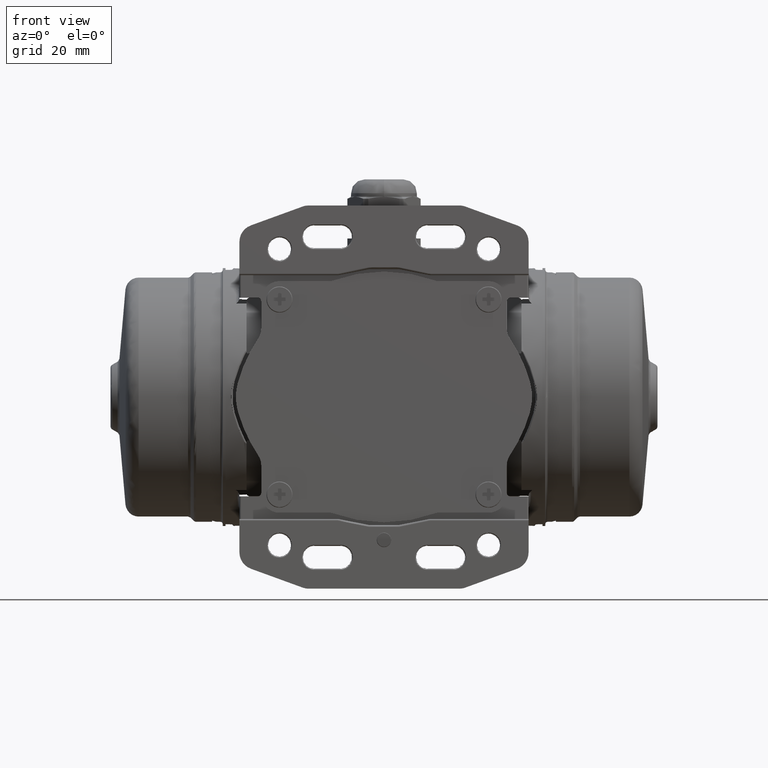
[diagram: clean part render]
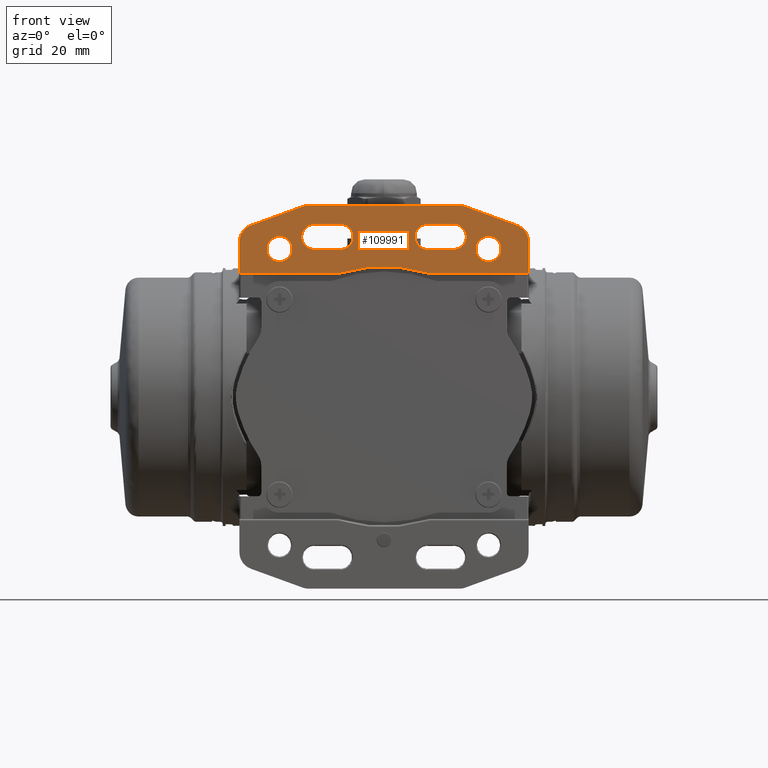
[diagram: same view with one face highlighted and labeled with its STEP entity id]
A machine part, front view. The second image highlights one B-rep face of the part: STEP entity #109991.
In plain terms, the highlighted planar face has unit normal (0, -1, 0).
Its self-contained STEP definition (entity closure, byte-faithful):
#297 = EDGE_CURVE ( 'NONE', #55110, #70408, #113274, .T. ) ;
#878 = CARTESIAN_POINT ( 'NONE',  ( 38.21509267599999800, -37.66390943500000100, 49.27899812649999200 ) ) ;
#1250 = CARTESIAN_POINT ( 'NONE',  ( -10.66903452149520400, -37.66390943500001500, 49.16739805635741300 ) ) ;
#2124 = CARTESIAN_POINT ( 'NONE',  ( 38.21509267599999800, -37.66390943500000100, 49.27899812649999200 ) ) ;
#2129 = CARTESIAN_POINT ( 'NONE',  ( 20.00499194400000400, -37.66390943500000100, 42.36961378750000100 ) ) ;
#2472 = CARTESIAN_POINT ( 'NONE',  ( -19.99500881599999900, -37.66390943500000100, 49.62440055399999700 ) ) ;
#2487 = EDGE_LOOP ( 'NONE', ( #68592, #55454 ) ) ;
#3033 = EDGE_CURVE ( 'NONE', #53085, #65955, #93179, .T. ) ;
#3132 = CARTESIAN_POINT ( 'NONE',  ( -12.49500888100000000, -37.66390943500000100, 42.36961378750000100 ) ) ;
#3255 = CARTESIAN_POINT ( 'NONE',  ( 28.17959993322146100, -37.66390943500000800, 45.66701133343615700 ) ) ;
#3675 = CARTESIAN_POINT ( 'NONE',  ( 12.94906644883843300, -37.66390943500000100, 35.54073647308492700 ) ) ;
#3696 = CARTESIAN_POINT ( 'NONE',  ( -21.16223463396239500, -37.66390943500000800, 49.43336491638876900 ) ) ;
#3715 = DIRECTION ( 'NONE',  ( -1.000000000000000000, 0.0000000000000000000, 0.0000000000000000000 ) ) ;
#3727 = AXIS2_PLACEMENT_3D ( 'NONE', #30834, #20711, #10973 ) ;
#4080 = CARTESIAN_POINT ( 'NONE',  ( -28.82555824584435600, -37.66390943500000800, 45.93879273496325800 ) ) ;
#4119 = ORIENTED_EDGE ( 'NONE', *, *, #106514, .T. ) ;
#4357 = CARTESIAN_POINT ( 'NONE',  ( -31.16452788811918500, -37.66390943500002200, 45.93891684577992900 ) ) ;
#4507 = CARTESIAN_POINT ( 'NONE',  ( 29.53327907921559300, -37.66390943500000100, 38.89302231472944300 ) ) ;
#4509 = CARTESIAN_POINT ( 'NONE',  ( -28.16948014631128000, -37.66390943500000100, 45.66725955507350700 ) ) ;
#4941 = CARTESIAN_POINT ( 'NONE',  ( 30.00499196800000200, -37.66390943500000100, 38.86961379700000000 ) ) ;
#4942 = CARTESIAN_POINT ( 'NONE',  ( -29.75738648917614200, -37.66390943500000100, 38.86975915783967400 ) ) ;
#5647 = CARTESIAN_POINT ( 'NONE',  ( -30.93559105734169600, -37.66390943500000100, 46.00806478752919300 ) ) ;
#5653 = EDGE_LOOP ( 'NONE', ( #10273, #22137, #92181, #42663 ) ) ;
#5804 = CARTESIAN_POINT ( 'NONE',  ( -26.46246716605304500, -37.66390943500000100, 43.44788244463978800 ) ) ;
#5965 = CARTESIAN_POINT ( 'NONE',  ( -38.20510871799999100, -37.66390943500000100, 49.27899843850000400 ) ) ;
#6656 = EDGE_CURVE ( 'NONE', #8417, #91784, #48770, .T. ) ;
#7002 = EDGE_CURVE ( 'NONE', #104261, #92576, #78993, .T. ) ;
#7479 = LINE ( 'NONE', #47944, #58949 ) ;
#7599 = EDGE_LOOP ( 'NONE', ( #121241, #39575 ) ) ;
#7945 = CARTESIAN_POINT ( 'NONE',  ( 8.972413567715573600, -37.66390943500001500, 45.04608161272594200 ) ) ;
#8020 = ORIENTED_EDGE ( 'NONE', *, *, #79632, .T. ) ;
#8417 = VERTEX_POINT ( 'NONE', #29245 ) ;
#8793 = CARTESIAN_POINT ( 'NONE',  ( 11.56427656430618400, -37.66390943499999400, 42.48606483729136600 ) ) ;
#8809 = VECTOR ( 'NONE', #23854, 1000.000000000000000 ) ;
#8924 = CARTESIAN_POINT ( 'NONE',  ( -8.962430242373402600, -37.66390943500000100, 46.94793182286797900 ) ) ;
#8954 = CARTESIAN_POINT ( 'NONE',  ( 22.23524289306879700, -37.66390943499999400, 43.09694228691027000 ) ) ;
#8967 = CARTESIAN_POINT ( 'NONE',  ( 40.89283835894723000, -37.66390943500000800, 47.03117776473828800 ) ) ;
#9111 = CARTESIAN_POINT ( 'NONE',  ( -5.422662462454646000, -37.66390943500000100, 37.12556823153927600 ) ) ;
#9241 = CARTESIAN_POINT ( 'NONE',  ( -22.22523906045226000, -37.66390943500000800, 43.09731047666839700 ) ) ;
#9277 = B_SPLINE_CURVE_WITH_KNOTS ( 'NONE', 3,
 ( #4941, #81909, #4507, #14309, #61604, #23995, #101394, #22733, #24407, #101807, #72620, #23572, #14732, #42565, #100115, #109484, #3255, #71770, #91250, #33291, #119200, #70936 ),
 .UNSPECIFIED., .F., .F.,
 ( 4, 2, 2, 2, 2, 2, 2, 2, 2, 2, 4 ),
 ( 0.0000000000000000000, 0.06249999999999957000, 0.1249999999999991400, 0.2499999999999991100, 0.3749999999999990600, 0.4999999999999990000, 0.6249999999999990000, 0.7499999999999990000, 0.8749999999999991100, 0.9374999999999995600, 1.000000000000000000 ),
 .UNSPECIFIED. ) ;
#9830 = B_SPLINE_CURVE_WITH_KNOTS ( 'NONE', 3,
 ( #67029, #30228, #105977, #9111, #18850, #86496, #10357, #28563, #115704, #57733, #99555, #51336, #59805, #22175, #11214 ),
 .UNSPECIFIED., .F., .F.,
 ( 4, 2, 1, 2, 2, 2, 2, 4 ),
 ( 0.0000000000000000000, 0.2500000000000000600, 0.3750000000000001100, 0.4375000000000001100, 0.5000000000000001100, 0.7500000000000000000, 0.8750000000000001100, 1.000000000000000000 ),
 .UNSPECIFIED. ) ;
#9907 = DIRECTION ( 'NONE',  ( 1.000000000000000000, 0.0000000000000000000, 0.0000000000000000000 ) ) ;
#10164 = CARTESIAN_POINT ( 'NONE',  ( -11.32778306969761300, -37.66390943500000100, 42.56064943204224700 ) ) ;
#10273 = ORIENTED_EDGE ( 'NONE', *, *, #122832, .T. ) ;
#10358 = EDGE_CURVE ( 'NONE', #91784, #97165, #65801, .T. ) ;
#10357 = CARTESIAN_POINT ( 'NONE',  ( -1.084772924272817500, -37.66390943499999400, 37.43088607178437100 ) ) ;
#10426 = CARTESIAN_POINT ( 'NONE',  ( -39.12323121436453700, -37.66390943499999400, 48.84170561261923600 ) ) ;
#10973 = DIRECTION ( 'NONE',  ( 0.0000000000000000000, 0.0000000000000000000, -1.000000000000000000 ) ) ;
#11162 = FACE_BOUND ( 'NONE', #2487, .T. ) ;
#11214 = CARTESIAN_POINT ( 'NONE',  ( 12.87961865100000100, -37.66390943500000100, 35.55970877649999600 ) ) ;
#11696 = CARTESIAN_POINT ( 'NONE',  ( -38.44507488771312600, -37.66390943500000800, 49.19159845311683900 ) ) ;
#11783 = EDGE_CURVE ( 'NONE', #70408, #55110, #9277, .T. ) ;
#13131 = B_SPLINE_CURVE_WITH_KNOTS ( 'NONE', 3,
 ( #96896, #76191, #18687, #37690, #38941, #48676, #116390, #58410, #87591, #29653, #39352, #107068, #66865, #115121, #124876, #8954, #76607, #86344, #68956, #59647, #69796, #22031, #68539, #2129 ),
 .UNSPECIFIED., .F., .F.,
 ( 4, 2, 2, 2, 2, 2, 2, 2, 2, 2, 2, 4 ),
 ( 0.0000000000000000000, 0.06250000000000001400, 0.1250000000000000300, 0.2500000000000001700, 0.3750000000000003300, 0.5000000000000004400, 0.6250000000000005600, 0.7500000000000007800, 0.8750000000000008900, 0.9062500000000006700, 0.9375000000000004400, 1.000000000000000000 ),
 .UNSPECIFIED. ) ;
#13720 = CARTESIAN_POINT ( 'NONE',  ( -33.16497548267813800, -37.66390943500000100, 40.67166246588582400 ) ) ;
#13907 = CARTESIAN_POINT ( 'NONE',  ( -21.61337394099999900, -37.66390943500000100, 54.99700717000000300 ) ) ;
#14205 = FACE_OUTER_BOUND ( 'NONE', #83527, .T. ) ;
#14309 = CARTESIAN_POINT ( 'NONE',  ( 29.06429236278441400, -37.66390943500000800, 38.98606185327057700 ) ) ;
#14310 = CARTESIAN_POINT ( 'NONE',  ( -27.09523352585263800, -37.66390943500000800, 44.72733662319007700 ) ) ;
#14353 = CARTESIAN_POINT ( 'NONE',  ( 0.004991978999994980300, -37.66390943500000100, 42.36961378750000100 ) ) ;
#14575 = CARTESIAN_POINT ( 'NONE',  ( -32.22536558909431600, -37.66390943500001500, 45.39676191118680000 ) ) ;
#14732 = CARTESIAN_POINT ( 'NONE',  ( 26.47271842590399200, -37.66390943500000100, 43.44779389354080500 ) ) ;
#14754 = VERTEX_POINT ( 'NONE', #98822 ) ;
#14870 = DIRECTION ( 'NONE',  ( 1.000000000000000000, 0.0000000000000000000, 0.0000000000000000000 ) ) ;
#15152 = CARTESIAN_POINT ( 'NONE',  ( -29.75708292075070100, -37.66390943500000800, 46.12425571278064500 ) ) ;
#15404 = CARTESIAN_POINT ( 'NONE',  ( -33.62253092124316800, -37.66390943500001500, 42.97035569407866300 ) ) ;
#15549 = VECTOR ( 'NONE', #14870, 1000.000000000000000 ) ;
#15553 = CARTESIAN_POINT ( 'NONE',  ( -28.82778369000342500, -37.66390943500000800, 39.06064927799644700 ) ) ;
#16083 = CARTESIAN_POINT ( 'NONE',  ( 22.20770442749372700, -37.66390943500000100, 54.99687958765607500 ) ) ;
#17276 = CARTESIAN_POINT ( 'NONE',  ( 12.03329431933645900, -37.66390943500000100, 42.39301937288167500 ) ) ;
#17284 = ORIENTED_EDGE ( 'NONE', *, *, #30783, .T. ) ;
#17341 = B_SPLINE_CURVE_WITH_KNOTS ( 'NONE', 3,
 ( #86220, #87468, #29537, #115002, #95502, #56596, #9241, #47283, #57014, #66741, #28279, #100571, #51526, #100996, #21965, #70556, #48984, #80704, #3696, #61633, #41767, #119226, #42595, #2472 ),
 .UNSPECIFIED., .F., .F.,
 ( 4, 2, 2, 2, 2, 2, 2, 2, 2, 2, 2, 4 ),
 ( 0.0000000000000000000, 0.06249999999999991700, 0.1249999999999998300, 0.2499999999999996700, 0.3749999999999995000, 0.4999999999999993300, 0.6249999999999991100, 0.7499999999999990000, 0.8749999999999988900, 0.9062499999999991100, 0.9374999999999994400, 1.000000000000000000 ),
 .UNSPECIFIED. ) ;
#18687 = CARTESIAN_POINT ( 'NONE',  ( 20.47668947289366400, -37.66390943500000100, 49.60099499015538500 ) ) ;
#18703 = CARTESIAN_POINT ( 'NONE',  ( 41.35012733919911900, -37.66390943500000800, 45.84118389055213800 ) ) ;
#18850 = CARTESIAN_POINT ( 'NONE',  ( -3.800952375545639100, -37.66390943500000100, 37.30282865556876000 ) ) ;
#18961 = CARTESIAN_POINT ( 'NONE',  ( 10.67927671338701300, -37.66390943500000800, 49.16721314326442600 ) ) ;
#19280 = ORIENTED_EDGE ( 'NONE', *, *, #54380, .T. ) ;
#19504 = CARTESIAN_POINT ( 'NONE',  ( -12.25830019353333400, -37.66390943500000800, 49.62425551937832300 ) ) ;
#19912 = CARTESIAN_POINT ( 'NONE',  ( -11.55509539103094200, -37.66390943499999400, 42.49191923154225500 ) ) ;
#20389 = CARTESIAN_POINT ( 'NONE',  ( 41.50493611986879500, -37.66390943500000800, 44.83592202894905700 ) ) ;
#20711 = DIRECTION ( 'NONE',  ( 0.0000000000000000000, -1.000000000000000000, 0.0000000000000000000 ) ) ;
#20943 = B_SPLINE_CURVE_WITH_KNOTS ( 'NONE', 3,
 ( #35898, #94258, #16083, #36301 ),
 .UNSPECIFIED., .F., .F.,
 ( 4, 4 ),
 ( 0.0000000000000000000, 1.000000000000000000 ),
 .UNSPECIFIED. ) ;
#21965 = CARTESIAN_POINT ( 'NONE',  ( -22.89466682316154000, -37.66390943500000800, 48.22685118125844600 ) ) ;
#22031 = CARTESIAN_POINT ( 'NONE',  ( 20.47796966074167100, -37.66390943499999400, 42.39313526240356800 ) ) ;
#22137 = ORIENTED_EDGE ( 'NONE', *, *, #108821, .T. ) ;
#22175 = CARTESIAN_POINT ( 'NONE',  ( 11.83669563692347100, -37.66390943500000800, 35.87105324576139500 ) ) ;
#22336 = CARTESIAN_POINT ( 'NONE',  ( 31.17444279066945300, -37.66390943499999400, 45.93879267472069500 ) ) ;
#22733 = CARTESIAN_POINT ( 'NONE',  ( 27.10533429475745100, -37.66390943500000100, 40.26676602705190100 ) ) ;
#23421 = CARTESIAN_POINT ( 'NONE',  ( -33.52728238208566600, -37.66390943499999400, 43.44779389355128500 ) ) ;
#23572 = CARTESIAN_POINT ( 'NONE',  ( 26.37746988676585100, -37.66390943500000100, 42.97035569412717800 ) ) ;
#23839 = CARTESIAN_POINT ( 'NONE',  ( -32.22526012300568300, -37.66390943500000100, 39.59733940020232300 ) ) ;
#23854 = DIRECTION ( 'NONE',  ( 0.0000000000000000000, 0.0000000000000000000, 1.000000000000000000 ) ) ;
#23995 = CARTESIAN_POINT ( 'NONE',  ( 28.17904299974148000, -37.66390943500000800, 39.32659878612314200 ) ) ;
#23996 = CARTESIAN_POINT ( 'NONE',  ( -27.09535198427274900, -37.66390943500000100, 40.26716304833454500 ) ) ;
#24407 = CARTESIAN_POINT ( 'NONE',  ( 26.83502511227426300, -37.66390943499999400, 40.67166297983972400 ) ) ;
#24408 = ORIENTED_EDGE ( 'NONE', *, *, #39074, .T. ) ;
#24841 = CARTESIAN_POINT ( 'NONE',  ( -26.82500154794696500, -37.66390943500000800, 44.32241857836022100 ) ) ;
#25239 = B_SPLINE_CURVE_WITH_KNOTS ( 'NONE', 3,
 ( #63707, #15152, #82775, #120455, #4080, #4509, #43406, #14310, #24841, #5804, #62880, #33293, #100970, #81911, #23996, #73449, #82355, #111137, #15553, #34560, #101808, #102236, #4942, #92090 ),
 .UNSPECIFIED., .F., .F.,
 ( 4, 2, 2, 2, 2, 2, 2, 2, 2, 2, 2, 4 ),
 ( 0.0000000000000000000, 0.06250000000000027800, 0.1250000000000005600, 0.2500000000000011100, 0.3750000000000016700, 0.5000000000000022200, 0.6250000000000027800, 0.7500000000000033300, 0.8750000000000038900, 0.9062500000000032200, 0.9375000000000025500, 1.000000000000000000 ),
 .UNSPECIFIED. ) ;
#26087 = CARTESIAN_POINT ( 'NONE',  ( 12.50499200900000000, -37.66390943500000100, 49.62440055399999700 ) ) ;
#26173 = CARTESIAN_POINT ( 'NONE',  ( -23.32347465000000100, -37.66390943500000100, 54.69547026549999900 ) ) ;
#27348 = CARTESIAN_POINT ( 'NONE',  ( 32.23524406820599400, -37.66390943499999400, 39.59694237867259400 ) ) ;
#28279 = CARTESIAN_POINT ( 'NONE',  ( -23.62226451600246700, -37.66390943500000100, 45.52357534328208300 ) ) ;
#28563 = CARTESIAN_POINT ( 'NONE',  ( -0.5387457097698310500, -37.66390943500000100, 37.44074449682877100 ) ) ;
#28658 = CARTESIAN_POINT ( 'NONE',  ( 9.605313560143866200, -37.66390943500000100, 43.76679473076107000 ) ) ;
#28791 = CARTESIAN_POINT ( 'NONE',  ( -12.02331135209870200, -37.66390943500000100, 49.60099499015190400 ) ) ;
#29207 = CARTESIAN_POINT ( 'NONE',  ( -9.595330503275601300, -37.66390943500000100, 48.22721970500965900 ) ) ;
#29245 = CARTESIAN_POINT ( 'NONE',  ( 20.00499194400000400, -37.66390943500000100, 42.36961378750000100 ) ) ;
#29537 = CARTESIAN_POINT ( 'NONE',  ( -20.46670634489735700, -37.66390943499999400, 42.39301935134714900 ) ) ;
#29623 = CARTESIAN_POINT ( 'NONE',  ( -11.67218818798600200, -37.66390943499999400, 42.46274547243922400 ) ) ;
#29653 = CARTESIAN_POINT ( 'NONE',  ( 23.53757035104292700, -37.66390943500000100, 46.94793284703995800 ) ) ;
#30040 = CARTESIAN_POINT ( 'NONE',  ( -11.55429358390129700, -37.66390943499999400, 49.50794954384809200 ) ) ;
#30228 = CARTESIAN_POINT ( 'NONE',  ( -10.78506642731393400, -37.66390943500000100, 36.18201624775645800 ) ) ;
#30783 = EDGE_CURVE ( 'NONE', #76812, #53085, #56852, .T. ) ;
#30794 = DIRECTION ( 'NONE',  ( -0.9396926210090202900, 0.0000000000000000000, -0.3420201427126736100 ) ) ;
#30834 = CARTESIAN_POINT ( 'NONE',  ( -41.49500802099999700, -37.66390943500000100, 54.99700717000000300 ) ) ;
#31401 = CARTESIAN_POINT ( 'NONE',  ( -12.49500888100000000, -37.66390943500000100, 49.62440055399999700 ) ) ;
#31561 = CARTESIAN_POINT ( 'NONE',  ( -41.11038532227303200, -37.66390943500000800, 46.56979114646829700 ) ) ;
#31585 = CARTESIAN_POINT ( 'NONE',  ( 38.21509267599999800, -37.66390943500000100, 49.27899812649999200 ) ) ;
#31955 = EDGE_LOOP ( 'NONE', ( #34749, #75862, #111054, #61906 ) ) ;
#32550 = DIRECTION ( 'NONE',  ( -0.9396926208080118600, 0.0000000000000000000, 0.3420201432649400100 ) ) ;
#33291 = CARTESIAN_POINT ( 'NONE',  ( 29.53032624534350200, -37.66390943500002200, 46.10087972647088600 ) ) ;
#33293 = CARTESIAN_POINT ( 'NONE',  ( -26.36746269386287300, -37.66390943500000100, 42.02358763177378600 ) ) ;
#33710 = CARTESIAN_POINT ( 'NONE',  ( 32.23512538826479100, -37.66390943500001500, 45.39658696322107500 ) ) ;
#33986 = CARTESIAN_POINT ( 'NONE',  ( -33.62227356875683200, -37.66390943500000100, 42.02365864692134100 ) ) ;
#34552 = CARTESIAN_POINT ( 'NONE',  ( 32.90464882379400500, -37.66390943500000800, 40.26716304832741900 ) ) ;
#34560 = CARTESIAN_POINT ( 'NONE',  ( -29.05509603900343800, -37.66390943500000100, 38.99191908399645000 ) ) ;
#34749 = ORIENTED_EDGE ( 'NONE', *, *, #6656, .T. ) ;
#34828 = CARTESIAN_POINT ( 'NONE',  ( -29.99500884000000100, -37.66390943500000100, 46.12440054400000400 ) ) ;
#35184 = ORIENTED_EDGE ( 'NONE', *, *, #69297, .T. ) ;
#35898 = CARTESIAN_POINT ( 'NONE',  ( 23.33345777800000000, -37.66390943500000100, 54.69547026549999900 ) ) ;
#36301 = CARTESIAN_POINT ( 'NONE',  ( 21.62335706900000100, -37.66390943500000100, 54.99700717000000300 ) ) ;
#36588 = VECTOR ( 'NONE', #42456, 1000.000000000000000 ) ;
#37067 = CARTESIAN_POINT ( 'NONE',  ( 33.53728244141881000, -37.66390943500000100, 41.54609692594546300 ) ) ;
#37462 = VERTEX_POINT ( 'NONE', #123177 ) ;
#37531 = CARTESIAN_POINT ( 'NONE',  ( 9.335021238818527000, -37.66390943499999400, 44.17164621890757600 ) ) ;
#37690 = CARTESIAN_POINT ( 'NONE',  ( 20.94570724110633400, -37.66390943500000800, 49.50794954384461000 ) ) ;
#38083 = CARTESIAN_POINT ( 'NONE',  ( -9.325038553626596300, -37.66390943499999400, 47.82236922013199600 ) ) ;
#38383 = CARTESIAN_POINT ( 'NONE',  ( 9.605334032614090100, -37.66390943500000100, 48.22685121972104100 ) ) ;
#38907 = CARTESIAN_POINT ( 'NONE',  ( -8.867477771017457000, -37.66390943500000100, 45.52357536917322300 ) ) ;
#38941 = CARTESIAN_POINT ( 'NONE',  ( 21.17421982976187400, -37.66390943499999400, 49.43872347006505700 ) ) ;
#38943 = B_SPLINE_CURVE_WITH_KNOTS ( 'NONE', 3,
 ( #100817, #72045, #120301, #73298, #72878, #71618, #23839, #121574, #13720, #72477, #33986, #15404, #23421, #54268, #63566, #14575, #91517, #4357, #5647, #63148, #121990, #34828 ),
 .UNSPECIFIED., .F., .F.,
 ( 4, 2, 2, 2, 2, 2, 2, 2, 2, 2, 4 ),
 ( 0.0000000000000000000, 0.06249999999999951400, 0.1249999999999990300, 0.2499999999999990600, 0.3749999999999990600, 0.4999999999999991100, 0.6249999999999991100, 0.7499999999999991100, 0.8749999999999992200, 0.9374999999999995600, 1.000000000000000000 ),
 .UNSPECIFIED. ) ;
#39074 = EDGE_CURVE ( 'NONE', #92576, #37462, #123514, .T. ) ;
#39352 = CARTESIAN_POINT ( 'NONE',  ( 23.63224764401414300, -37.66390943499999400, 46.47043895277715100 ) ) ;
#39575 = ORIENTED_EDGE ( 'NONE', *, *, #11783, .T. ) ;
#40931 = CARTESIAN_POINT ( 'NONE',  ( 13.30877289000000000, -37.66390943500000100, 35.49700716999999600 ) ) ;
#41521 = VERTEX_POINT ( 'NONE', #109107 ) ;
#41767 = CARTESIAN_POINT ( 'NONE',  ( -20.81782957712466200, -37.66390943500000800, 49.53126886095162700 ) ) ;
#41913 = LINE ( 'NONE', #2124, #111639 ) ;
#42085 = VERTEX_POINT ( 'NONE', #58273 ) ;
#42139 = DIRECTION ( 'NONE',  ( -1.000000000000000000, 0.0000000000000000000, 0.0000000000000000000 ) ) ;
#42143 = CARTESIAN_POINT ( 'NONE',  ( 30.24291788725092500, -37.66390943500000800, 46.12425571278063100 ) ) ;
#42456 = DIRECTION ( 'NONE',  ( -1.000000000000000000, 0.0000000000000000000, 0.0000000000000000000 ) ) ;
#42458 = CARTESIAN_POINT ( 'NONE',  ( -41.49500802099999700, -37.66390943500000100, 44.58053533150000200 ) ) ;
#42557 = CARTESIAN_POINT ( 'NONE',  ( 31.83052045366107700, -37.66390943500000800, 45.66725967555863300 ) ) ;
#42565 = CARTESIAN_POINT ( 'NONE',  ( 26.83471654409600400, -37.66390943500000100, 44.32250712945918300 ) ) ;
#42595 = CARTESIAN_POINT ( 'NONE',  ( -20.23263270144750300, -37.66390943499999400, 49.62425507983601100 ) ) ;
#42663 = ORIENTED_EDGE ( 'NONE', *, *, #94420, .T. ) ;
#42699 = CARTESIAN_POINT ( 'NONE',  ( -13.29878893200000100, -37.66390943500000100, 35.49700716999999600 ) ) ;
#43396 = CARTESIAN_POINT ( 'NONE',  ( 33.17499926005333300, -37.66390943499999400, 44.32241857835892800 ) ) ;
#43406 = CARTESIAN_POINT ( 'NONE',  ( -27.76487519814736200, -37.66390943500000800, 45.39658663180992400 ) ) ;
#44918 = ORIENTED_EDGE ( 'NONE', *, *, #7002, .T. ) ;
#46780 = CARTESIAN_POINT ( 'NONE',  ( 31.83070851528545100, -37.66390943500000100, 39.32680148675967000 ) ) ;
#47244 = CARTESIAN_POINT ( 'NONE',  ( 8.972707595746904000, -37.66390943500000100, 46.94792202327413100 ) ) ;
#47283 = CARTESIAN_POINT ( 'NONE',  ( -22.89468752754774500, -37.66390943500000100, 43.76679497033162400 ) ) ;
#47808 = CARTESIAN_POINT ( 'NONE',  ( -12.49500888100000000, -37.66390943500000100, 42.36961378750000100 ) ) ;
#47902 = CARTESIAN_POINT ( 'NONE',  ( 0.004991978999994980300, -37.66390943500000100, 35.49700716999999600 ) ) ;
#47944 = CARTESIAN_POINT ( 'NONE',  ( 0.004991978999994980300, -37.66390943500000100, 49.62440055399999700 ) ) ;
#48088 = VERTEX_POINT ( 'NONE', #82483 ) ;
#48100 = CARTESIAN_POINT ( 'NONE',  ( 11.22624163562684400, -37.66390943499999400, 49.39354880597921500 ) ) ;
#48676 = CARTESIAN_POINT ( 'NONE',  ( 21.83096630347626600, -37.66390943500000800, 49.16739805636986200 ) ) ;
#48770 = LINE ( 'NONE', #90712, #36588 ) ;
#48984 = CARTESIAN_POINT ( 'NONE',  ( -21.82072413621140000, -37.66390943500000100, 49.16721313012995200 ) ) ;
#49836 = CARTESIAN_POINT ( 'NONE',  ( -23.32347465000000100, -37.66390943500000100, 54.69547026549999900 ) ) ;
#50034 = EDGE_CURVE ( 'NONE', #77139, #41521, #17341, .T. ) ;
#50709 = VECTOR ( 'NONE', #3715, 1000.000000000000000 ) ;
#51130 = EDGE_CURVE ( 'NONE', #113798, #76812, #75444, .T. ) ;
#51336 = CARTESIAN_POINT ( 'NONE',  ( 8.659098325076536500, -37.66390943499998700, 36.61402467473859400 ) ) ;
#51526 = CARTESIAN_POINT ( 'NONE',  ( -23.52729324811192400, -37.66390943499998700, 46.94792195629238300 ) ) ;
#53085 = VERTEX_POINT ( 'NONE', #26173 ) ;
#53469 = FACE_BOUND ( 'NONE', #7599, .T. ) ;
#54172 = ORIENTED_EDGE ( 'NONE', *, *, #75938, .T. ) ;
#54268 = CARTESIAN_POINT ( 'NONE',  ( -33.16528426391431600, -37.66390943500000800, 44.32250712944870900 ) ) ;
#54380 = EDGE_CURVE ( 'NONE', #72864, #123860, #59883, .T. ) ;
#54946 = CARTESIAN_POINT ( 'NONE',  ( -12.94305102815652300, -37.66390943500000800, 35.53804904596635300 ) ) ;
#55110 = VERTEX_POINT ( 'NONE', #62036 ) ;
#55346 = CARTESIAN_POINT ( 'NONE',  ( -13.00878497867821300, -37.66390943499999400, 35.52349177760510900 ) ) ;
#55442 = CARTESIAN_POINT ( 'NONE',  ( 30.00499196800000200, -37.66390943500000100, 38.86961379700000000 ) ) ;
#55454 = ORIENTED_EDGE ( 'NONE', *, *, #55715, .T. ) ;
#55715 = EDGE_CURVE ( 'NONE', #107870, #121455, #38943, .T. ) ;
#56130 = CARTESIAN_POINT ( 'NONE',  ( 11.56507852583331800, -37.66390943500000800, 49.50209512042592800 ) ) ;
#56200 = VERTEX_POINT ( 'NONE', #73018 ) ;
#56525 = CARTESIAN_POINT ( 'NONE',  ( 30.82781327617258100, -37.66390943499999400, 38.96274559334633400 ) ) ;
#56561 = CARTESIAN_POINT ( 'NONE',  ( 10.67901752956382900, -37.66390943500000100, 42.82661635547371000 ) ) ;
#56596 = CARTESIAN_POINT ( 'NONE',  ( -21.82098317551873000, -37.66390943500000100, 42.82661628514971100 ) ) ;
#56852 = B_SPLINE_CURVE_WITH_KNOTS ( 'NONE', 3,
 ( #59196, #108312, #68929, #62139 ),
 .UNSPECIFIED., .F., .F.,
 ( 4, 4 ),
 ( 0.0000000000000000000, 1.000000000000000000 ),
 .UNSPECIFIED. ) ;
#56944 = CARTESIAN_POINT ( 'NONE',  ( 30.94490496989295600, -37.66390943500000800, 38.99191911571514200 ) ) ;
#57014 = CARTESIAN_POINT ( 'NONE',  ( -23.16497942922326900, -37.66390943500000800, 44.17164561054844500 ) ) ;
#57733 = CARTESIAN_POINT ( 'NONE',  ( 4.358531227764796500, -37.66390943500000100, 37.28245840926233300 ) ) ;
#58273 = CARTESIAN_POINT ( 'NONE',  ( 20.00499194400000400, -37.66390943500000100, 49.62440055399999700 ) ) ;
#58410 = CARTESIAN_POINT ( 'NONE',  ( 22.90467065578331700, -37.66390943500001500, 48.22721937093602000 ) ) ;
#58738 = EDGE_CURVE ( 'NONE', #65955, #48088, #82363, .T. ) ;
#58838 = CARTESIAN_POINT ( 'NONE',  ( 39.14476445665948000, -37.66390943500000100, 48.85739857661482700 ) ) ;
#58949 = VECTOR ( 'NONE', #9907, 1000.000000000000000 ) ;
#59196 = CARTESIAN_POINT ( 'NONE',  ( -21.61337394099999900, -37.66390943500000100, 54.99700717000000300 ) ) ;
#59352 = VERTEX_POINT ( 'NONE', #31401 ) ;
#59647 = CARTESIAN_POINT ( 'NONE',  ( 20.94490539552868900, -37.66390943500000800, 42.49191921563574700 ) ) ;
#59805 = CARTESIAN_POINT ( 'NONE',  ( 10.78400696892346600, -37.66390943500000800, 36.14418531926141800 ) ) ;
#59883 = LINE ( 'NONE', #47902, #117458 ) ;
#59978 = CARTESIAN_POINT ( 'NONE',  ( 13.27050198220453400, -37.66390943499999400, 35.49713223642730500 ) ) ;
#60394 = CARTESIAN_POINT ( 'NONE',  ( 12.87961865100000100, -37.66390943500000100, 35.55970877649999600 ) ) ;
#61604 = CARTESIAN_POINT ( 'NONE',  ( 28.83575138662924800, -37.66390943500000800, 39.05529960593843700 ) ) ;
#61605 = CARTESIAN_POINT ( 'NONE',  ( 12.91547862050536500, -37.66390943499999400, 35.54944833193066200 ) ) ;
#61633 = CARTESIAN_POINT ( 'NONE',  ( -20.93492231262905200, -37.66390943500000100, 49.50209511688876800 ) ) ;
#61906 = ORIENTED_EDGE ( 'NONE', *, *, #90565, .T. ) ;
#61921 = DIRECTION ( 'NONE',  ( 1.000000000000000000, 0.0000000000000000000, 0.0000000000000000000 ) ) ;
#62036 = CARTESIAN_POINT ( 'NONE',  ( 30.00499196800000200, -37.66390943500000100, 46.12440054400000400 ) ) ;
#62139 = CARTESIAN_POINT ( 'NONE',  ( -23.32347465000000100, -37.66390943500000100, 54.69547026549999900 ) ) ;
#62607 = CARTESIAN_POINT ( 'NONE',  ( -29.99500884000000100, -37.66390943500000100, 38.86961379700000000 ) ) ;
#62870 = CARTESIAN_POINT ( 'NONE',  ( 33.53753364194665900, -37.66390943499999400, 43.44788244464106000 ) ) ;
#62880 = CARTESIAN_POINT ( 'NONE',  ( -26.36776834213713600, -37.66390943500000100, 42.97042670922621000 ) ) ;
#63148 = CARTESIAN_POINT ( 'NONE',  ( -30.46967456265829500, -37.66390943500000800, 46.10087972647082200 ) ) ;
#63566 = CARTESIAN_POINT ( 'NONE',  ( -32.89456104690566500, -37.66390943500000100, 44.72716134381319400 ) ) ;
#63597 = CARTESIAN_POINT ( 'NONE',  ( 13.30877289000000000, -37.66390943500000100, 35.49700716999999600 ) ) ;
#63600 = CARTESIAN_POINT ( 'NONE',  ( 0.004991978999994980300, -37.66390943500000100, 49.62440055399999700 ) ) ;
#63707 = CARTESIAN_POINT ( 'NONE',  ( -29.99500884000000100, -37.66390943500000100, 46.12440054400000400 ) ) ;
#63827 = CARTESIAN_POINT ( 'NONE',  ( -13.22398477641100300, -37.66390943500000100, 35.49725162431339200 ) ) ;
#64203 = CARTESIAN_POINT ( 'NONE',  ( 12.26828315977426900, -37.66390943500000800, 42.36975883301746400 ) ) ;
#64257 = CARTESIAN_POINT ( 'NONE',  ( 0.004991978999994980300, -37.66390943500000100, 35.49700716999999600 ) ) ;
#65400 = CARTESIAN_POINT ( 'NONE',  ( 33.63253830687680300, -37.66390943500000100, 42.02358874126219500 ) ) ;
#65788 = CARTESIAN_POINT ( 'NONE',  ( -41.49500802099999700, -37.66390943500000100, 45.24700716999999600 ) ) ;
#65801 = B_SPLINE_CURVE_WITH_KNOTS ( 'NONE', 3,
 ( #103970, #64203, #17276, #8793, #106071, #56561, #66289, #28658, #37531, #7945, #105246, #124299, #47244, #67547, #38383, #85332, #18961, #48100, #115807, #56130, #75605, #125142, #85754, #77288 ),
 .UNSPECIFIED., .F., .F.,
 ( 4, 2, 2, 2, 2, 2, 2, 2, 2, 2, 2, 4 ),
 ( 1.461007668299080900E-008, 0.06250001369694722900, 0.1250000127838177800, 0.2500000109575584700, 0.3750000091312991600, 0.5000000073050399100, 0.6250000054787805400, 0.7500000036525211700, 0.8750000018262619200, 0.9062500013696964700, 0.9375000009131311300, 1.000000000000000000 ),
 .UNSPECIFIED. ) ;
#65955 = VERTEX_POINT ( 'NONE', #5965 ) ;
#66289 = CARTESIAN_POINT ( 'NONE',  ( 10.27476132580381900, -37.66390943499999400, 43.09731089230071900 ) ) ;
#66741 = CARTESIAN_POINT ( 'NONE',  ( -23.52758733477674000, -37.66390943500000800, 45.04608202945154700 ) ) ;
#66865 = CARTESIAN_POINT ( 'NONE',  ( 23.53727637620772500, -37.66390943500000100, 45.04609238545498300 ) ) ;
#67029 = CARTESIAN_POINT ( 'NONE',  ( -12.86963797759806000, -37.66390943500000100, 35.55970780745465000 ) ) ;
#67547 = CARTESIAN_POINT ( 'NONE',  ( 9.334727337855307300, -37.66390943500000800, 47.82237913470886100 ) ) ;
#67777 = LINE ( 'NONE', #92376, #8809 ) ;
#67925 = VECTOR ( 'NONE', #42139, 1000.000000000000000 ) ;
#68087 = CARTESIAN_POINT ( 'NONE',  ( -10.66929354302860300, -37.66390943500000800, 42.82680119288733800 ) ) ;
#68343 = CARTESIAN_POINT ( 'NONE',  ( -38.20510871799999100, -37.66390943500000100, 49.27899843850000400 ) ) ;
#68539 = CARTESIAN_POINT ( 'NONE',  ( 20.24261582945944600, -37.66390943499999400, 42.36975926166398700 ) ) ;
#68592 = ORIENTED_EDGE ( 'NONE', *, *, #79818, .T. ) ;
#68771 = CARTESIAN_POINT ( 'NONE',  ( -40.29859075394358600, -37.66390943500000800, 47.86559306128780400 ) ) ;
#68929 = CARTESIAN_POINT ( 'NONE',  ( -22.77432420991059900, -37.66390943500000100, 54.89520893091932400 ) ) ;
#68956 = CARTESIAN_POINT ( 'NONE',  ( 21.17221771686201500, -37.66390943500000100, 42.56064941613576000 ) ) ;
#69187 = CARTESIAN_POINT ( 'NONE',  ( -38.67667248563546400, -37.66390943499999400, 49.08663259838076700 ) ) ;
#69297 = EDGE_CURVE ( 'NONE', #48088, #104261, #90594, .T. ) ;
#69796 = CARTESIAN_POINT ( 'NONE',  ( 20.82781270512916200, -37.66390943499999400, 42.46274548054820000 ) ) ;
#69814 = EDGE_CURVE ( 'NONE', #123860, #56200, #67777, .T. ) ;
#70127 = FACE_BOUND ( 'NONE', #31955, .T. ) ;
#70134 = CARTESIAN_POINT ( 'NONE',  ( 13.12667144111534000, -37.66390943500000800, 35.50775904576237700 ) ) ;
#70408 = VERTEX_POINT ( 'NONE', #55442 ) ;
#70462 = VECTOR ( 'NONE', #30794, 1000.000000000000100 ) ;
#70556 = CARTESIAN_POINT ( 'NONE',  ( -22.22525976483847600, -37.66390943500000800, 48.89707205474155700 ) ) ;
#70751 = VERTEX_POINT ( 'NONE', #92428 ) ;
#70840 = CARTESIAN_POINT ( 'NONE',  ( -41.41680030972695900, -37.66390943500000100, 45.59833750553169600 ) ) ;
#70936 = CARTESIAN_POINT ( 'NONE',  ( 30.00499196800000200, -37.66390943500000100, 46.12440054400000400 ) ) ;
#71333 = ORIENTED_EDGE ( 'NONE', *, *, #99844, .T. ) ;
#71337 = CARTESIAN_POINT ( 'NONE',  ( 13.05719257438467200, -37.66390943500000100, 35.51796868048761300 ) ) ;
#71618 = CARTESIAN_POINT ( 'NONE',  ( -31.82095798674405900, -37.66390943500000100, 39.32659890535460100 ) ) ;
#71763 = CARTESIAN_POINT ( 'NONE',  ( 30.00499196800000200, -37.66390943500000100, 46.12440054400000400 ) ) ;
#71770 = CARTESIAN_POINT ( 'NONE',  ( 28.83547291988927000, -37.66390943500000800, 45.93891684578193200 ) ) ;
#72045 = CARTESIAN_POINT ( 'NONE',  ( -30.23171633604672000, -37.66390943500000800, 38.86975859449766800 ) ) ;
#72298 = ORIENTED_EDGE ( 'NONE', *, *, #69814, .T. ) ;
#72477 = CARTESIAN_POINT ( 'NONE',  ( -33.52759116332186600, -37.66390943500001500, 41.54606519311418800 ) ) ;
#72620 = CARTESIAN_POINT ( 'NONE',  ( 26.37772723923414700, -37.66390943499998700, 42.02365864687281100 ) ) ;
#72864 = VERTEX_POINT ( 'NONE', #63597 ) ;
#72878 = CARTESIAN_POINT ( 'NONE',  ( -31.16424933212796600, -37.66390943499999400, 39.05529954632269400 ) ) ;
#73018 = CARTESIAN_POINT ( 'NONE',  ( 41.50499197900000300, -37.66390943500000100, 44.58053501949999700 ) ) ;
#73087 = ORIENTED_EDGE ( 'NONE', *, *, #51130, .T. ) ;
#73298 = CARTESIAN_POINT ( 'NONE',  ( -30.93570847719809400, -37.66390943500000100, 38.98606183217810200 ) ) ;
#73372 = LINE ( 'NONE', #14353, #50709 ) ;
#73449 = CARTESIAN_POINT ( 'NONE',  ( -27.76475673972725400, -37.66390943500000100, 39.59694237866546700 ) ) ;
#74206 = CARTESIAN_POINT ( 'NONE',  ( 12.50499184299999900, -37.66390943500000100, 42.36961378750000100 ) ) ;
#74724 = FACE_BOUND ( 'NONE', #5653, .T. ) ;
#75147 = CARTESIAN_POINT ( 'NONE',  ( 30.47796834165484400, -37.66390943500000800, 38.89313506530732700 ) ) ;
#75444 = LINE ( 'NONE', #90400, #67925 ) ;
#75605 = CARTESIAN_POINT ( 'NONE',  ( 11.68217125975967900, -37.66390943500000100, 49.53126886366089800 ) ) ;
#75862 = ORIENTED_EDGE ( 'NONE', *, *, #10358, .T. ) ;
#75938 = EDGE_CURVE ( 'NONE', #14754, #113798, #20943, .T. ) ;
#76191 = CARTESIAN_POINT ( 'NONE',  ( 20.24170063146520700, -37.66390943500000100, 49.62425551937833700 ) ) ;
#76578 = CARTESIAN_POINT ( 'NONE',  ( -9.595350874075466100, -37.66390943499999400, 43.76716316008307200 ) ) ;
#76607 = CARTESIAN_POINT ( 'NONE',  ( 21.83070738447908000, -37.66390943500000100, 42.82680123530463600 ) ) ;
#76619 = CARTESIAN_POINT ( 'NONE',  ( 41.12047564360172900, -37.66390943500000800, 46.56982431939567800 ) ) ;
#76812 = VERTEX_POINT ( 'NONE', #13907 ) ;
#77139 = VERTEX_POINT ( 'NONE', #114342 ) ;
#77288 = CARTESIAN_POINT ( 'NONE',  ( 12.50499200900000000, -37.66390943500000100, 49.62440055399999700 ) ) ;
#78101 = CARTESIAN_POINT ( 'NONE',  ( -39.33676378795740900, -37.66390943500001500, 48.70230639278860000 ) ) ;
#78476 = VECTOR ( 'NONE', #106020, 1000.000000000000000 ) ;
#78515 = CARTESIAN_POINT ( 'NONE',  ( -40.88294575805643700, -37.66390943500000800, 47.03124196071220800 ) ) ;
#78841 = B_SPLINE_CURVE_WITH_KNOTS ( 'NONE', 3,
 ( #87977, #19504, #28791, #30040, #86721, #1250, #87136, #29207, #38083, #8924, #96862, #38907, #106619, #116354, #76578, #86311, #68087, #87561, #10164, #19912, #29623, #105787, #115514, #47808 ),
 .UNSPECIFIED., .F., .F.,
 ( 4, 2, 2, 2, 2, 2, 2, 2, 2, 2, 2, 4 ),
 ( 0.0000000000000000000, 0.06250000000000043000, 0.1250000000000008600, 0.2500000000000010000, 0.3750000000000011100, 0.5000000000000012200, 0.6250000000000014400, 0.7500000000000015500, 0.8750000000000017800, 0.9062500000000015500, 0.9375000000000013300, 1.000000000000000000 ),
 .UNSPECIFIED. ) ;
#78993 = LINE ( 'NONE', #64257, #15549 ) ;
#79632 = EDGE_CURVE ( 'NONE', #70751, #72864, #96552, .T. ) ;
#79818 = EDGE_CURVE ( 'NONE', #121455, #107870, #25239, .T. ) ;
#80257 = CARTESIAN_POINT ( 'NONE',  ( 13.23503945096654600, -37.66390943500000100, 35.49848225259222500 ) ) ;
#80678 = CARTESIAN_POINT ( 'NONE',  ( 12.89755558680194100, -37.66390943500000800, 35.55441687661144100 ) ) ;
#80704 = CARTESIAN_POINT ( 'NONE',  ( -21.27375920719715200, -37.66390943500000800, 49.39354879934250400 ) ) ;
#81909 = CARTESIAN_POINT ( 'NONE',  ( 29.76828447204026800, -37.66390943500000800, 38.86975859449767500 ) ) ;
#81911 = CARTESIAN_POINT ( 'NONE',  ( -26.82475016708930600, -37.66390943500000100, 40.67163116864477200 ) ) ;
#82355 = CARTESIAN_POINT ( 'NONE',  ( -28.16929206132419200, -37.66390943500000800, 39.32680157134281300 ) ) ;
#82363 = B_SPLINE_CURVE_WITH_KNOTS ( 'NONE', 3,
 ( #68343, #11696, #69187, #10426, #78101, #87829, #68771, #78515, #31561, #70840, #118281, #42458 ),
 .UNSPECIFIED., .F., .F.,
 ( 4, 2, 2, 2, 2, 4 ),
 ( 0.0000000000000000000, 0.1250000000000010000, 0.2500000000000020000, 0.5000000000000013300, 0.7500000000000006700, 1.000000000000000000 ),
 .UNSPECIFIED. ) ;
#82483 = CARTESIAN_POINT ( 'NONE',  ( -41.49500802099999700, -37.66390943500000100, 44.58053533150000200 ) ) ;
#82775 = CARTESIAN_POINT ( 'NONE',  ( -29.52108270763868300, -37.66390943499998700, 46.10088809750398300 ) ) ;
#83527 = EDGE_LOOP ( 'NONE', ( #19280, #72298, #71333, #4119, #54172, #73087, #17284, #86222, #89486, #35184, #44918, #24408, #100457, #8020 ) ) ;
#85293 = CARTESIAN_POINT ( 'NONE',  ( 30.24261437428333500, -37.66390943500000800, 38.86975915783966000 ) ) ;
#85332 = CARTESIAN_POINT ( 'NONE',  ( 10.27474108806644400, -37.66390943500000100, 48.89707207503084200 ) ) ;
#85754 = CARTESIAN_POINT ( 'NONE',  ( 12.26736812701081500, -37.66390943500000800, 49.62425507983814300 ) ) ;
#86220 = CARTESIAN_POINT ( 'NONE',  ( -19.99500881599999900, -37.66390943500000100, 42.36961378750000100 ) ) ;
#86222 = ORIENTED_EDGE ( 'NONE', *, *, #3033, .T. ) ;
#86311 = CARTESIAN_POINT ( 'NONE',  ( -10.26475793192453700, -37.66390943500002200, 43.09694228691694200 ) ) ;
#86344 = CARTESIAN_POINT ( 'NONE',  ( 21.28374230513024300, -37.66390943499999400, 42.60046553617383600 ) ) ;
#86496 = CARTESIAN_POINT ( 'NONE',  ( -2.172185597000142500, -37.66390943500000100, 37.39147792580402600 ) ) ;
#86721 = CARTESIAN_POINT ( 'NONE',  ( -11.32578099525240100, -37.66390943499999400, 49.43872347007128100 ) ) ;
#87136 = CARTESIAN_POINT ( 'NONE',  ( -10.26477830272440200, -37.66390943500000800, 48.89670353099033700 ) ) ;
#87468 = CARTESIAN_POINT ( 'NONE',  ( -20.23171750345080600, -37.66390943500000100, 42.36975882212167500 ) ) ;
#87561 = CARTESIAN_POINT ( 'NONE',  ( -11.21625849424285100, -37.66390943499999400, 42.60046554677816700 ) ) ;
#87591 = CARTESIAN_POINT ( 'NONE',  ( 23.17496266895705000, -37.66390943499999400, 47.82236819596004600 ) ) ;
#87829 = CARTESIAN_POINT ( 'NONE',  ( -39.94291782608517100, -37.66390943500000800, 48.23729328942283700 ) ) ;
#87977 = CARTESIAN_POINT ( 'NONE',  ( -12.49500888100000000, -37.66390943500000100, 49.62440055399999700 ) ) ;
#88024 = CARTESIAN_POINT ( 'NONE',  ( 38.69536744125305500, -37.66390943500000800, 49.10407343813234600 ) ) ;
#89486 = ORIENTED_EDGE ( 'NONE', *, *, #58738, .T. ) ;
#89585 = CARTESIAN_POINT ( 'NONE',  ( 12.96792210587754100, -37.66390943500000800, 35.53624191352931700 ) ) ;
#90400 = CARTESIAN_POINT ( 'NONE',  ( 0.004991978999994980300, -37.66390943500000100, 54.99700717000000300 ) ) ;
#90565 = EDGE_CURVE ( 'NONE', #42085, #8417, #13131, .T. ) ;
#90594 = LINE ( 'NONE', #65788, #78476 ) ;
#90712 = CARTESIAN_POINT ( 'NONE',  ( 0.004991978999994980300, -37.66390943500000100, 42.36961378750000100 ) ) ;
#90817 = CARTESIAN_POINT ( 'NONE',  ( 13.16333154673006700, -37.66390943500001500, 35.50372714229079900 ) ) ;
#91250 = CARTESIAN_POINT ( 'NONE',  ( 29.06440975065650200, -37.66390943500000100, 46.00806478752915000 ) ) ;
#91517 = CARTESIAN_POINT ( 'NONE',  ( -31.82040087476164900, -37.66390943499999400, 45.66701133344016500 ) ) ;
#91784 = VERTEX_POINT ( 'NONE', #74206 ) ;
#92090 = CARTESIAN_POINT ( 'NONE',  ( -29.99500884000000100, -37.66390943500000100, 38.86961379700000000 ) ) ;
#92181 = ORIENTED_EDGE ( 'NONE', *, *, #50034, .T. ) ;
#92376 = CARTESIAN_POINT ( 'NONE',  ( 41.50499197900000300, -37.66390943500000100, 45.24700716999999600 ) ) ;
#92428 = CARTESIAN_POINT ( 'NONE',  ( 12.87961865100000100, -37.66390943500000100, 35.55970877649999600 ) ) ;
#92576 = VERTEX_POINT ( 'NONE', #103266 ) ;
#93179 = LINE ( 'NONE', #49836, #70462 ) ;
#93963 = VERTEX_POINT ( 'NONE', #31585 ) ;
#94258 = CARTESIAN_POINT ( 'NONE',  ( 22.78464996013330400, -37.66390943500000100, 54.89508431130211400 ) ) ;
#94420 = EDGE_CURVE ( 'NONE', #41521, #59352, #7479, .T. ) ;
#95024 = CARTESIAN_POINT ( 'NONE',  ( 31.28374205242863900, -37.66390943500000100, 39.10046546081009200 ) ) ;
#95502 = CARTESIAN_POINT ( 'NONE',  ( -21.16423670174063400, -37.66390943500000800, 42.55529087142514300 ) ) ;
#96552 = B_SPLINE_CURVE_WITH_KNOTS ( 'NONE', 3,
 ( #60394, #80678, #61605, #3675, #89585, #118378, #71337, #70134, #90817, #80257, #59978, #40931 ),
 .UNSPECIFIED., .F., .F.,
 ( 4, 2, 2, 2, 2, 4 ),
 ( 0.0000000000000000000, 0.1249999999999915600, 0.2499999999999831200, 0.4999999999999887900, 0.7499999999999944500, 1.000000000000000000 ),
 .UNSPECIFIED. ) ;
#96862 = CARTESIAN_POINT ( 'NONE',  ( -8.867753180982552100, -37.66390943499998700, 46.47043895282677500 ) ) ;
#96896 = CARTESIAN_POINT ( 'NONE',  ( 20.00499194400000400, -37.66390943500000100, 49.62440055399999700 ) ) ;
#97165 = VERTEX_POINT ( 'NONE', #26087 ) ;
#98084 = PLANE ( 'NONE',  #3727 ) ;
#98344 = B_SPLINE_CURVE_WITH_KNOTS ( 'NONE', 3,
 ( #105835, #20389, #107515, #115135, #18703, #76619, #8967, #115564, #115974, #58838, #88024, #878 ),
 .UNSPECIFIED., .F., .F.,
 ( 4, 2, 2, 2, 2, 4 ),
 ( 0.0000000000000000000, 0.1250000000000008300, 0.2500000000000016700, 0.5000000000000011100, 0.7500000000000005600, 1.000000000000000000 ),
 .UNSPECIFIED. ) ;
#98822 = CARTESIAN_POINT ( 'NONE',  ( 23.33345777800000000, -37.66390943500000100, 54.69547026549999900 ) ) ;
#99555 = CARTESIAN_POINT ( 'NONE',  ( 7.586709642617597300, -37.66390943499999400, 36.81078861611882800 ) ) ;
#99844 = EDGE_CURVE ( 'NONE', #56200, #93963, #98344, .T. ) ;
#100115 = CARTESIAN_POINT ( 'NONE',  ( 27.10543976110801300, -37.66390943500000100, 44.72716134381798300 ) ) ;
#100457 = ORIENTED_EDGE ( 'NONE', *, *, #113361, .T. ) ;
#100537 = CARTESIAN_POINT ( 'NONE',  ( 30.47891799405840300, -37.66390943500000100, 46.10088811861731300 ) ) ;
#100571 = CARTESIAN_POINT ( 'NONE',  ( -23.62253992599753300, -37.66390943500000800, 46.47043897871793000 ) ) ;
#100817 = CARTESIAN_POINT ( 'NONE',  ( -29.99500884000000100, -37.66390943500000100, 38.86961379700000000 ) ) ;
#100960 = CARTESIAN_POINT ( 'NONE',  ( 30.94631388194160200, -37.66390943500000100, 46.00805639538268100 ) ) ;
#100970 = CARTESIAN_POINT ( 'NONE',  ( -26.46271854691069700, -37.66390943500000100, 41.54609649035522500 ) ) ;
#100996 = CARTESIAN_POINT ( 'NONE',  ( -23.16527351588807100, -37.66390943500000100, 47.82237908670759900 ) ) ;
#101388 = CARTESIAN_POINT ( 'NONE',  ( 32.90476750373520100, -37.66390943500000100, 44.72733629177894700 ) ) ;
#101394 = CARTESIAN_POINT ( 'NONE',  ( 27.77474068524256300, -37.66390943500000800, 39.59733939994811200 ) ) ;
#101798 = CARTESIAN_POINT ( 'NONE',  ( 30.00499196800000200, -37.66390943500000100, 38.86961379700000000 ) ) ;
#101807 = CARTESIAN_POINT ( 'NONE',  ( 26.47240985772572200, -37.66390943499999400, 41.54606467916026000 ) ) ;
#101808 = CARTESIAN_POINT ( 'NONE',  ( -29.17218754672235900, -37.66390943500000800, 38.96274560145167200 ) ) ;
#102037 = LINE ( 'NONE', #63600, #124780 ) ;
#102236 = CARTESIAN_POINT ( 'NONE',  ( -29.52203268555526700, -37.66390943500000100, 38.89313504909666400 ) ) ;
#103266 = CARTESIAN_POINT ( 'NONE',  ( -13.29878893200000100, -37.66390943500000100, 35.49700716999999600 ) ) ;
#103970 = CARTESIAN_POINT ( 'NONE',  ( 12.50499184299999900, -37.66390943500000100, 42.36961378750000100 ) ) ;
#104261 = VERTEX_POINT ( 'NONE', #113745 ) ;
#104784 = CARTESIAN_POINT ( 'NONE',  ( 33.17525046058120400, -37.66390943500000100, 40.67163073305454200 ) ) ;
#105246 = CARTESIAN_POINT ( 'NONE',  ( 8.877736298044670300, -37.66390943499999400, 45.52357543359807600 ) ) ;
#105787 = CARTESIAN_POINT ( 'NONE',  ( -12.02203102802799600, -37.66390943499999400, 42.39313527862152900 ) ) ;
#105835 = CARTESIAN_POINT ( 'NONE',  ( 41.50499197900000300, -37.66390943500000100, 44.58053501949999700 ) ) ;
#105977 = CARTESIAN_POINT ( 'NONE',  ( -8.656673714090693700, -37.66390943500000100, 36.65289917842143600 ) ) ;
#106020 = DIRECTION ( 'NONE',  ( 0.0000000000000000000, 0.0000000000000000000, -1.000000000000000000 ) ) ;
#106071 = CARTESIAN_POINT ( 'NONE',  ( 11.33576398172064100, -37.66390943499999400, 42.55529091950893400 ) ) ;
#106514 = EDGE_CURVE ( 'NONE', #93963, #14754, #41913, .T. ) ;
#106619 = CARTESIAN_POINT ( 'NONE',  ( -8.962724061864733500, -37.66390943500000100, 45.04609325467310300 ) ) ;
#106647 = CARTESIAN_POINT ( 'NONE',  ( -29.99500884000000100, -37.66390943500000100, 46.12440054400000400 ) ) ;
#107068 = CARTESIAN_POINT ( 'NONE',  ( 23.63252305398585700, -37.66390943500000100, 45.52357536922283300 ) ) ;
#107515 = CARTESIAN_POINT ( 'NONE',  ( 41.48551151115720600, -37.66390943499999400, 45.08945308807562900 ) ) ;
#107870 = VERTEX_POINT ( 'NONE', #62607 ) ;
#108312 = CARTESIAN_POINT ( 'NONE',  ( -22.19735671707812900, -37.66390943500000100, 54.99687966730135000 ) ) ;
#108821 = EDGE_CURVE ( 'NONE', #120344, #77139, #73372, .T. ) ;
#109107 = CARTESIAN_POINT ( 'NONE',  ( -19.99500881599999900, -37.66390943500000100, 49.62440055399999700 ) ) ;
#109358 = EDGE_CURVE ( 'NONE', #97165, #42085, #102037, .T. ) ;
#109484 = CARTESIAN_POINT ( 'NONE',  ( 27.77463521889199400, -37.66390943499998700, 45.39676191118201800 ) ) ;
#109991 = ADVANCED_FACE ( 'NONE', ( #11162, #74724, #70127, #53469, #14205 ), #98084, .T. ) ;
#111054 = ORIENTED_EDGE ( 'NONE', *, *, #109358, .T. ) ;
#111130 = CARTESIAN_POINT ( 'NONE',  ( 33.63223243912318600, -37.66390943499998700, 42.97042559973779400 ) ) ;
#111137 = CARTESIAN_POINT ( 'NONE',  ( -28.71625891716895000, -37.66390943500000100, 39.10046543966431200 ) ) ;
#111639 = VECTOR ( 'NONE', #32550, 1000.000000000000100 ) ;
#113274 = B_SPLINE_CURVE_WITH_KNOTS ( 'NONE', 3,
 ( #71763, #42143, #100537, #100960, #22336, #42557, #33710, #101388, #43396, #62870, #111130, #65400, #37067, #104784, #34552, #27348, #46780, #95024, #114503, #56944, #56525, #75147, #85293, #101798 ),
 .UNSPECIFIED., .F., .F.,
 ( 4, 2, 2, 2, 2, 2, 2, 2, 2, 2, 2, 4 ),
 ( 0.0000000000000000000, 0.06250000000000118000, 0.1250000000000023600, 0.2500000000000023300, 0.3750000000000022800, 0.5000000000000022200, 0.6250000000000022200, 0.7500000000000021100, 0.8750000000000021100, 0.9062500000000014400, 0.9375000000000007800, 1.000000000000000000 ),
 .UNSPECIFIED. ) ;
#113361 = EDGE_CURVE ( 'NONE', #37462, #70751, #9830, .T. ) ;
#113745 = CARTESIAN_POINT ( 'NONE',  ( -41.49500802099999700, -37.66390943500000100, 35.49700716999999600 ) ) ;
#113798 = VERTEX_POINT ( 'NONE', #117812 ) ;
#114342 = CARTESIAN_POINT ( 'NONE',  ( -19.99500881599999900, -37.66390943500000100, 42.36961378750000100 ) ) ;
#114503 = CARTESIAN_POINT ( 'NONE',  ( 31.17221731889294700, -37.66390943500000100, 39.06064930971512400 ) ) ;
#114773 = DIRECTION ( 'NONE',  ( 1.000000000000000000, 0.0000000000000000000, 0.0000000000000000000 ) ) ;
#115002 = CARTESIAN_POINT ( 'NONE',  ( -20.93572411310263000, -37.66390943499998700, 42.48606479765285100 ) ) ;
#115121 = CARTESIAN_POINT ( 'NONE',  ( 23.17525664379227400, -37.66390943500002200, 44.17163525454501600 ) ) ;
#115135 = CARTESIAN_POINT ( 'NONE',  ( 41.40808752284281300, -37.66390943499999400, 45.59285083392434500 ) ) ;
#115514 = CARTESIAN_POINT ( 'NONE',  ( -12.25738499553977700, -37.66390943500000100, 42.36975926166398700 ) ) ;
#115564 = CARTESIAN_POINT ( 'NONE',  ( 40.30866606905279100, -37.66390943500000800, 47.86565667226171400 ) ) ;
#115704 = CARTESIAN_POINT ( 'NONE',  ( 2.179942734079332000, -37.66390943500000100, 37.44080784518492800 ) ) ;
#115807 = CARTESIAN_POINT ( 'NONE',  ( 11.33776620744733100, -37.66390943500000100, 49.43336492188576200 ) ) ;
#115974 = CARTESIAN_POINT ( 'NONE',  ( 39.95283372734054000, -37.66390943500000800, 48.23720488838517900 ) ) ;
#116354 = CARTESIAN_POINT ( 'NONE',  ( -9.324744734135268900, -37.66390943500000800, 44.17163438532690400 ) ) ;
#116390 = CARTESIAN_POINT ( 'NONE',  ( 22.23522218821669900, -37.66390943500001500, 48.89670386506399100 ) ) ;
#117458 = VECTOR ( 'NONE', #114773, 1000.000000000000000 ) ;
#117812 = CARTESIAN_POINT ( 'NONE',  ( 21.62335706900000100, -37.66390943500000100, 54.99700717000000300 ) ) ;
#118281 = CARTESIAN_POINT ( 'NONE',  ( -41.49489622307355300, -37.66390943500000100, 45.09167357898373800 ) ) ;
#118378 = CARTESIAN_POINT ( 'NONE',  ( 13.01978395430743300, -37.66390943499999400, 35.52475454978512200 ) ) ;
#119200 = CARTESIAN_POINT ( 'NONE',  ( 29.76614925505867500, -37.66390943500001500, 46.12425538660571800 ) ) ;
#119226 = CARTESIAN_POINT ( 'NONE',  ( -20.46798653275066800, -37.66390943499999400, 49.60087907909675000 ) ) ;
#120301 = CARTESIAN_POINT ( 'NONE',  ( -30.46672186280190800, -37.66390943500000100, 38.89302233582190400 ) ) ;
#120344 = VERTEX_POINT ( 'NONE', #3132 ) ;
#120455 = CARTESIAN_POINT ( 'NONE',  ( -29.05368703236130700, -37.66390943499999400, 46.00805641649600400 ) ) ;
#121241 = ORIENTED_EDGE ( 'NONE', *, *, #297, .T. ) ;
#121455 = VERTEX_POINT ( 'NONE', #106647 ) ;
#121574 = CARTESIAN_POINT ( 'NONE',  ( -32.89466651299429900, -37.66390943500000100, 40.26676602679767600 ) ) ;
#121626 = CARTESIAN_POINT ( 'NONE',  ( 41.50499197900000300, -37.66390943500000100, 35.49700716999999600 ) ) ;
#121990 = CARTESIAN_POINT ( 'NONE',  ( -30.23385155293984300, -37.66390943500001500, 46.12425538660573200 ) ) ;
#122255 = CARTESIAN_POINT ( 'NONE',  ( -13.15511439429706400, -37.66390943500000100, 35.50223547312710100 ) ) ;
#122660 = CARTESIAN_POINT ( 'NONE',  ( -12.86963797759806000, -37.66390943500000100, 35.55970780745465000 ) ) ;
#122832 = EDGE_CURVE ( 'NONE', #59352, #120344, #78841, .T. ) ;
#123177 = CARTESIAN_POINT ( 'NONE',  ( -12.86963797759806000, -37.66390943500000100, 35.55970780745465000 ) ) ;
#123514 = B_SPLINE_CURVE_WITH_KNOTS ( 'NONE', 3,
 ( #42699, #63827, #122255, #55346, #54946, #122660 ),
 .UNSPECIFIED., .F., .F.,
 ( 4, 2, 4 ),
 ( 0.0000000000000000000, 0.4999962715972043300, 0.9999925431944086700 ),
 .UNSPECIFIED. ) ;
#123860 = VERTEX_POINT ( 'NONE', #121626 ) ;
#124299 = CARTESIAN_POINT ( 'NONE',  ( 8.877460909907043200, -37.66390943500000800, 46.47043905440695300 ) ) ;
#124780 = VECTOR ( 'NONE', #61921, 1000.000000000000000 ) ;
#124876 = CARTESIAN_POINT ( 'NONE',  ( 22.90464995093121600, -37.66390943500000800, 43.76716316008973700 ) ) ;
#125142 = CARTESIAN_POINT ( 'NONE',  ( 12.03201429914802000, -37.66390943500000800, 49.60087907978025600 ) ) ;